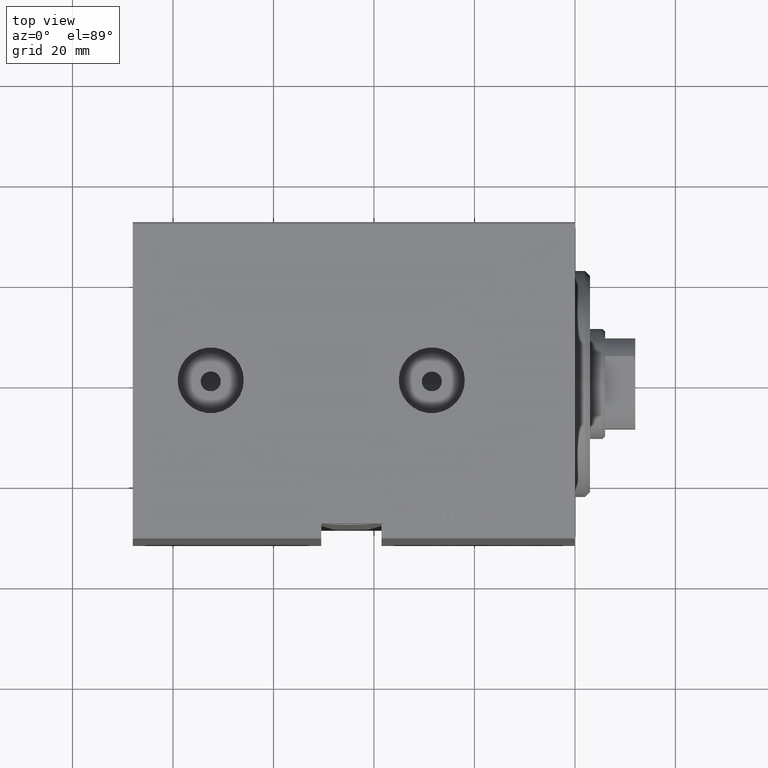
[diagram: clean part render]
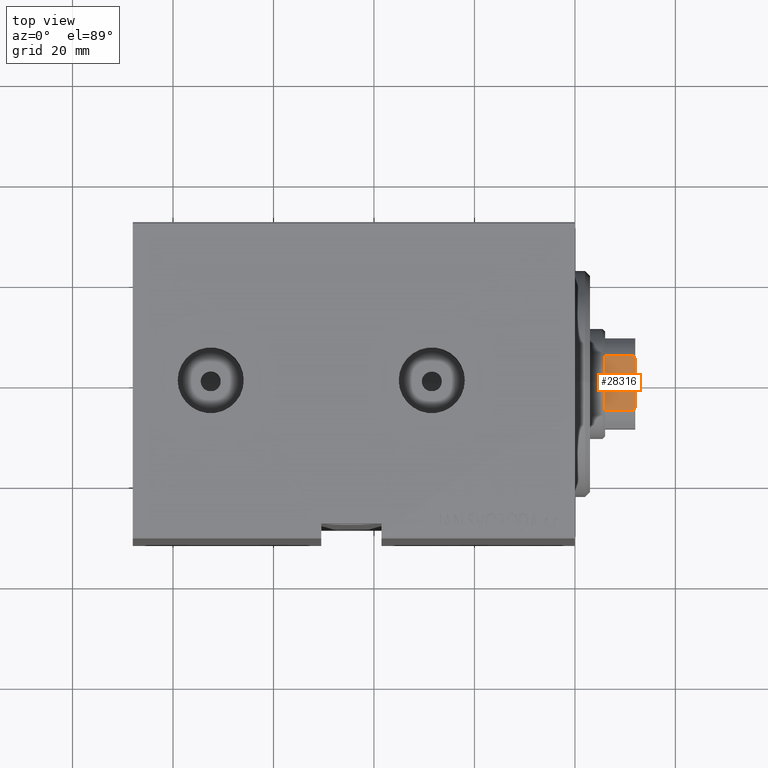
[diagram: same view with one face highlighted and labeled with its STEP entity id]
A machine part, top view. The second image highlights one B-rep face of the part: STEP entity #28316.
In plain terms, the highlighted planar face has unit normal (-0, 0, -1).
Its self-contained STEP definition (entity closure, byte-faithful):
#1296 = ORIENTED_EDGE ( 'NONE', *, *, #20682, .T. ) ;
#3546 = ORIENTED_EDGE ( 'NONE', *, *, #26357, .F. ) ;
#4256 = VECTOR ( 'NONE', #40895, 1000.000000000000000 ) ;
#5943 = DIRECTION ( 'NONE',  ( -1.927470528863119049E-16, 1.000000000000000000, 0.000000000000000000 ) ) ;
#6161 = FACE_OUTER_BOUND ( 'NONE', #7998, .T. ) ;
#7984 = VECTOR ( 'NONE', #28505, 1000.000000000000000 ) ;
#7998 = EDGE_LOOP ( 'NONE', ( #38646, #36019, #3546, #30144, #27808, #1296 ) ) ;
#8104 = CARTESIAN_POINT ( 'NONE',  ( -9.000000000000001776, 4.800000000000007816, 88.00000000000000000 ) ) ;
#8171 = DIRECTION ( 'NONE',  ( 1.927470528863119049E-16, -1.000000000000000000, 0.000000000000000000 ) ) ;
#10136 = EDGE_CURVE ( 'NONE', #30315, #12830, #13887, .T. ) ;
#12313 = VECTOR ( 'NONE', #8171, 1000.000000000000000 ) ;
#12417 = VECTOR ( 'NONE', #28024, 1000.000000000000000 ) ;
#12430 = CARTESIAN_POINT ( 'NONE',  ( -9.000000000000000000, -5.207299490555459265, 87.80354495430066208 ) ) ;
#12830 = VERTEX_POINT ( 'NONE', #21769 ) ;
#13105 = CARTESIAN_POINT ( 'NONE',  ( -9.000000000000001776, 8.999999999999998224, 88.00000000000000000 ) ) ;
#13736 = AXIS2_PLACEMENT_3D ( 'NONE', #13105, #32822, #5943 ) ;
#13887 = B_SPLINE_CURVE_WITH_KNOTS ( 'NONE', 3,
 ( #32149, #12430, #36244, #16111 ),
 .UNSPECIFIED., .F., .F.,
 ( 4, 4 ),
 ( 0.000000000000000000, 0.0006782784334759721714 ),
 .UNSPECIFIED. ) ;
#14528 = CARTESIAN_POINT ( 'NONE',  ( -9.000000000000001776, 4.800000000000007816, 88.00000000000000000 ) ) ;
#14825 = CARTESIAN_POINT ( 'NONE',  ( -9.000000000000001776, 5.207299490555476140, 87.80354495430067630 ) ) ;
#15130 = VERTEX_POINT ( 'NONE', #14528 ) ;
#15512 = PLANE ( 'NONE',  #13736 ) ;
#16111 = CARTESIAN_POINT ( 'NONE',  ( -8.999999999999998224, -4.799999999999960743, 88.00000000000000000 ) ) ;
#16641 = EDGE_CURVE ( 'NONE', #27338, #30315, #41303, .T. ) ;
#20682 = EDGE_CURVE ( 'NONE', #39425, #27338, #34771, .T. ) ;
#20740 = EDGE_CURVE ( 'NONE', #15130, #23288, #42886, .T. ) ;
#21641 = LINE ( 'NONE', #37669, #12313 ) ;
#21769 = CARTESIAN_POINT ( 'NONE',  ( -8.999999999999998224, -4.799999999999960743, 88.00000000000000000 ) ) ;
#23288 = VERTEX_POINT ( 'NONE', #40571 ) ;
#23337 = CARTESIAN_POINT ( 'NONE',  ( -9.000000000000000000, -5.408326913195987018, 87.69999999999997442 ) ) ;
#24567 = CARTESIAN_POINT ( 'NONE',  ( -8.999999999999998224, 5.408326913195988794, -0.001000000000001000089 ) ) ;
#26357 = EDGE_CURVE ( 'NONE', #15130, #12830, #21641, .T. ) ;
#26597 = CARTESIAN_POINT ( 'NONE',  ( -9.000000000000000000, -5.408326913195987018, 81.99999999999997158 ) ) ;
#27338 = VERTEX_POINT ( 'NONE', #26597 ) ;
#27808 = ORIENTED_EDGE ( 'NONE', *, *, #41088, .F. ) ;
#28024 = DIRECTION ( 'NONE',  ( -0.000000000000000000, -0.000000000000000000, 1.000000000000000000 ) ) ;
#28316 = ADVANCED_FACE ( 'NONE', ( #6161 ), #15512, .F. ) ;
#28505 = DIRECTION ( 'NONE',  ( 1.927470528863119049E-16, -1.000000000000000000, 0.000000000000000000 ) ) ;
#30144 = ORIENTED_EDGE ( 'NONE', *, *, #20740, .T. ) ;
#30315 = VERTEX_POINT ( 'NONE', #23337 ) ;
#32149 = CARTESIAN_POINT ( 'NONE',  ( -9.000000000000000000, -5.408326913195987018, 87.69999999999997442 ) ) ;
#32822 = DIRECTION ( 'NONE',  ( 1.000000000000000000, 1.927470528863119049E-16, -0.000000000000000000 ) ) ;
#34771 = LINE ( 'NONE', #34968, #7984 ) ;
#34790 = CARTESIAN_POINT ( 'NONE',  ( -9.000000000000000000, -5.408326913195987018, -0.001000000000001000089 ) ) ;
#34968 = CARTESIAN_POINT ( 'NONE',  ( -9.000000000000001776, 8.999999999999998224, 81.99999999999998579 ) ) ;
#35189 = CARTESIAN_POINT ( 'NONE',  ( -9.000000000000001776, 5.004607318780306180, 87.90371420292692051 ) ) ;
#36019 = ORIENTED_EDGE ( 'NONE', *, *, #10136, .T. ) ;
#36244 = CARTESIAN_POINT ( 'NONE',  ( -8.999999999999998224, -5.004607318780278646, 87.90371420292690630 ) ) ;
#37586 = CARTESIAN_POINT ( 'NONE',  ( -8.999999999999998224, 5.408326913195987018, 81.99999999999997158 ) ) ;
#37669 = CARTESIAN_POINT ( 'NONE',  ( -9.000000000000001776, 8.999999999999998224, 88.00000000000000000 ) ) ;
#38646 = ORIENTED_EDGE ( 'NONE', *, *, #16641, .T. ) ;
#39425 = VERTEX_POINT ( 'NONE', #37586 ) ;
#40571 = CARTESIAN_POINT ( 'NONE',  ( -8.999999999999998224, 5.408326913195988794, 87.70000000000000284 ) ) ;
#40895 = DIRECTION ( 'NONE',  ( -0.000000000000000000, -0.000000000000000000, 1.000000000000000000 ) ) ;
#41088 = EDGE_CURVE ( 'NONE', #39425, #23288, #41442, .T. ) ;
#41282 = CARTESIAN_POINT ( 'NONE',  ( -8.999999999999998224, 5.408326913195988794, 87.70000000000000284 ) ) ;
#41303 = LINE ( 'NONE', #34790, #4256 ) ;
#41442 = LINE ( 'NONE', #24567, #12417 ) ;
#42886 = B_SPLINE_CURVE_WITH_KNOTS ( 'NONE', 3,
 ( #8104, #35189, #14825, #41282 ),
 .UNSPECIFIED., .F., .F.,
 ( 4, 4 ),
 ( 0.000000000000000000, 0.0006782784334759201297 ),
 .UNSPECIFIED. ) ;